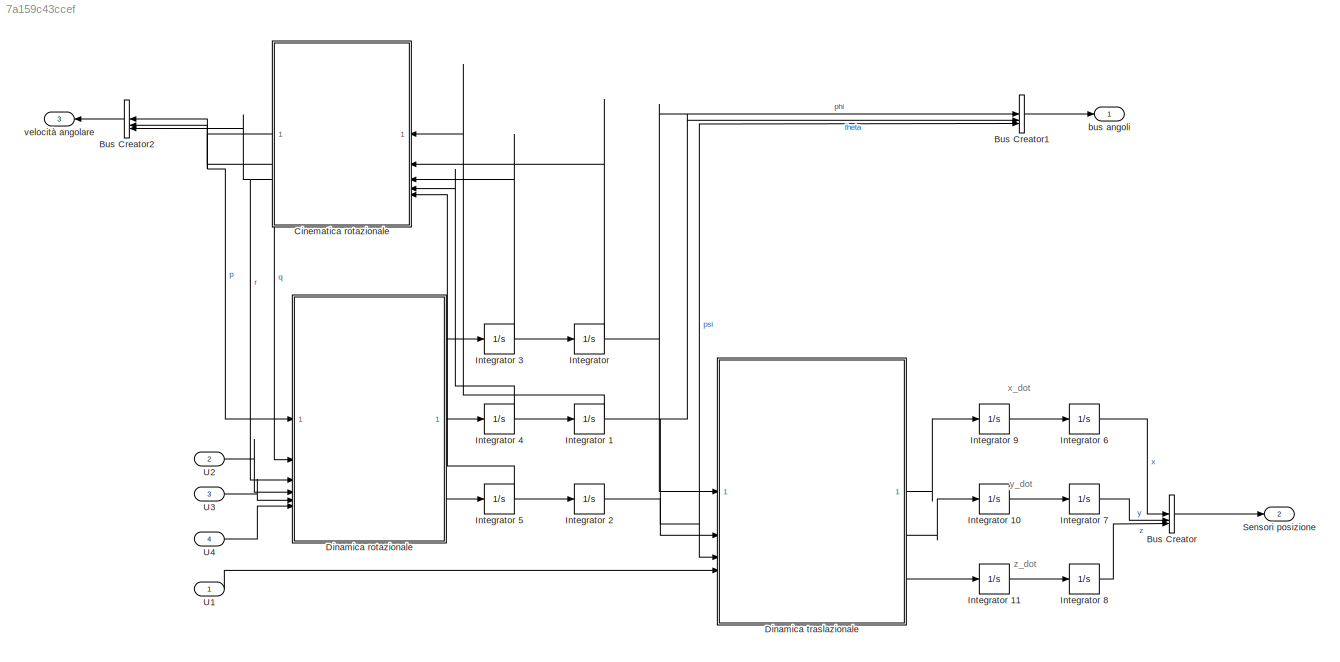
MODEL slx_7a159c43ccef
KIND model
CONFIG AbsTol = auto
CONFIG EnableMultiTasking = off
CONFIG FixedStep = auto
CONFIG MaxStep = auto
CONFIG MinStep = auto
CONFIG RelTol = 1e-3
CONFIG SampleTimeConstraint = Unconstrained
CONFIG SolverName = VariableStepAuto
CONFIG StartTime = 0.0
CONFIG StopTime = 10.0
BLOCK [BusCreator] Bus Creator
  DisplayOption = bar
  InheritFromInputs = on
  Inputs = 3
BLOCK [BusCreator] Bus Creator1
  DisplayOption = bar
  InheritFromInputs = on
  Inputs = 3
BLOCK [BusCreator] Bus Creator2
  DisplayOption = bar
  InheritFromInputs = on
  Inputs = 3
  NameLocation = top
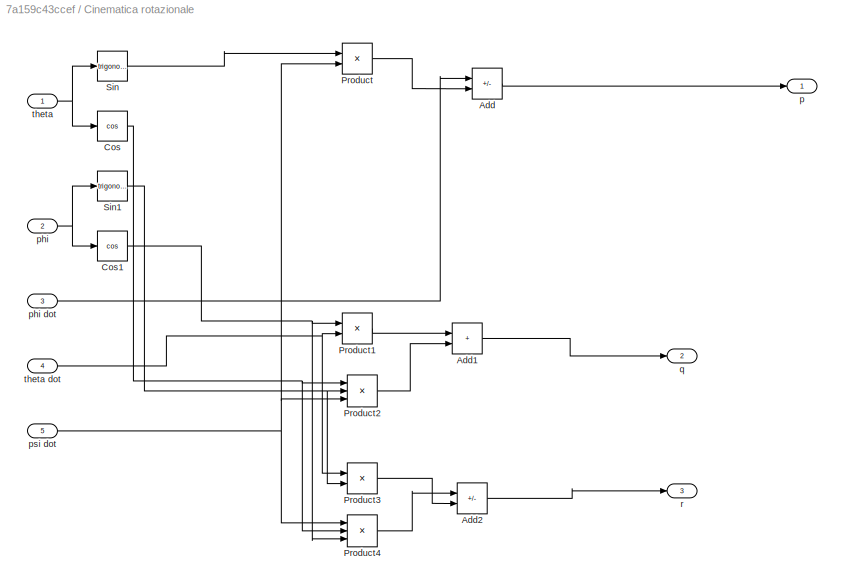
BLOCK [SubSystem] Cinematica rotazionale
  NameLocation = top
BLOCK [Sum] Cinematica rotazionale/Add
  IconShape = rectangular
  Inputs = +-
BLOCK [Sum] Cinematica rotazionale/Add1
  IconShape = rectangular
BLOCK [Sum] Cinematica rotazionale/Add2
  IconShape = rectangular
  Inputs = +-
BLOCK [Trigonometry] Cinematica rotazionale/Cos
  Operator = cos
BLOCK [Trigonometry] Cinematica rotazionale/Cos1
  Operator = cos
BLOCK [Product] Cinematica rotazionale/Product
BLOCK [Product] Cinematica rotazionale/Product1
BLOCK [Product] Cinematica rotazionale/Product2
  Inputs = 3
BLOCK [Product] Cinematica rotazionale/Product3
BLOCK [Product] Cinematica rotazionale/Product4
  Inputs = 3
BLOCK [Trigonometry] Cinematica rotazionale/Sin
BLOCK [Trigonometry] Cinematica rotazionale/Sin1
BLOCK [Outport] Cinematica rotazionale/p
BLOCK [Inport] Cinematica rotazionale/phi
  Port = 2
BLOCK [Inport] Cinematica rotazionale/phi dot
  Port = 3
BLOCK [Inport] Cinematica rotazionale/psi dot
  Port = 5
BLOCK [Outport] Cinematica rotazionale/q
  Port = 2
BLOCK [Outport] Cinematica rotazionale/r
  Port = 3
BLOCK [Inport] Cinematica rotazionale/theta
BLOCK [Inport] Cinematica rotazionale/theta dot
  Port = 4
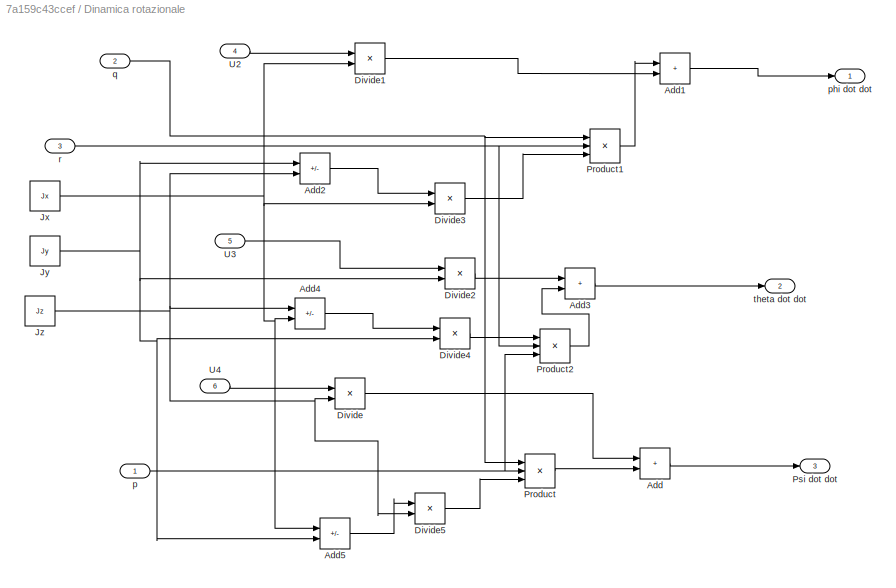
BLOCK [SubSystem] Dinamica rotazionale
BLOCK [Sum] Dinamica rotazionale/Add
  IconShape = rectangular
BLOCK [Sum] Dinamica rotazionale/Add1
  IconShape = rectangular
BLOCK [Sum] Dinamica rotazionale/Add2
  IconShape = rectangular
  Inputs = +-
BLOCK [Sum] Dinamica rotazionale/Add3
  IconShape = rectangular
BLOCK [Sum] Dinamica rotazionale/Add4
  IconShape = rectangular
  Inputs = +-
BLOCK [Sum] Dinamica rotazionale/Add5
  IconShape = rectangular
  Inputs = +-
BLOCK [Product] Dinamica rotazionale/Divide
  Inputs = */
BLOCK [Product] Dinamica rotazionale/Divide1
  Inputs = */
BLOCK [Product] Dinamica rotazionale/Divide2
  Inputs = */
BLOCK [Product] Dinamica rotazionale/Divide3
  Inputs = */
BLOCK [Product] Dinamica rotazionale/Divide4
  Inputs = */
BLOCK [Product] Dinamica rotazionale/Divide5
  Inputs = */
BLOCK [Constant] Dinamica rotazionale/Jx
  Value = Jx
BLOCK [Constant] Dinamica rotazionale/Jy
  Value = Jy
BLOCK [Constant] Dinamica rotazionale/Jz
  Value = Jz
BLOCK [Product] Dinamica rotazionale/Product
  Inputs = 3
BLOCK [Product] Dinamica rotazionale/Product1
  Inputs = 3
BLOCK [Product] Dinamica rotazionale/Product2
  Inputs = 3
BLOCK [Outport] Dinamica rotazionale/Psi dot dot
  Port = 3
BLOCK [Inport] Dinamica rotazionale/U2
  Port = 4
BLOCK [Inport] Dinamica rotazionale/U3
  Port = 5
BLOCK [Inport] Dinamica rotazionale/U4
  Port = 6
BLOCK [Inport] Dinamica rotazionale/p
BLOCK [Outport] Dinamica rotazionale/phi dot dot
BLOCK [Inport] Dinamica rotazionale/q
  Port = 2
BLOCK [Inport] Dinamica rotazionale/r
  Port = 3
BLOCK [Outport] Dinamica rotazionale/theta dot dot
  Port = 2
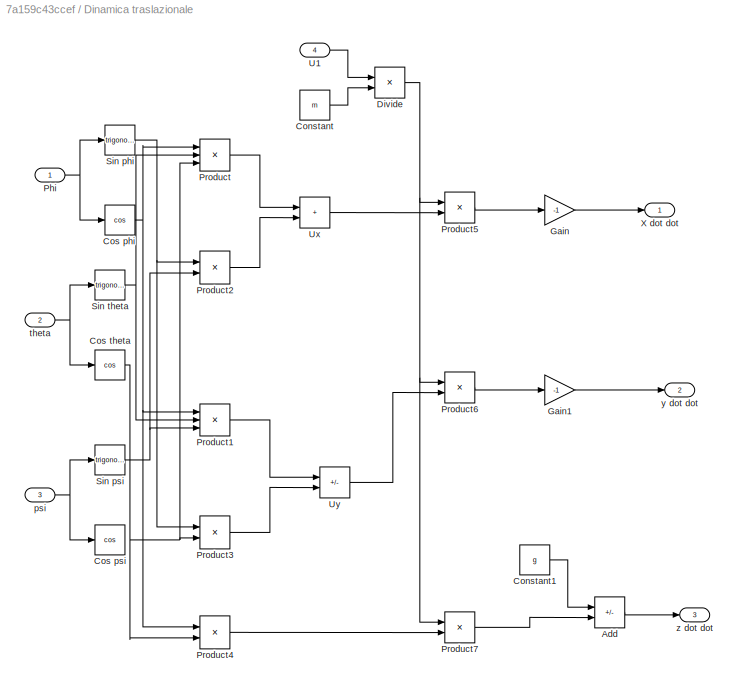
BLOCK [SubSystem] Dinamica traslazionale
BLOCK [Sum] Dinamica traslazionale/Add
  IconShape = rectangular
  Inputs = +-
BLOCK [Constant] Dinamica traslazionale/Constant
  Value = m
BLOCK [Constant] Dinamica traslazionale/Constant1
  Value = g
BLOCK [Trigonometry] Dinamica traslazionale/Cos phi
  Operator = cos
BLOCK [Trigonometry] Dinamica traslazionale/Cos psi
  Operator = cos
BLOCK [Trigonometry] Dinamica traslazionale/Cos theta
  Operator = cos
BLOCK [Product] Dinamica traslazionale/Divide
  Inputs = */
BLOCK [Gain] Dinamica traslazionale/Gain
  Gain = -1
BLOCK [Gain] Dinamica traslazionale/Gain1
  Gain = -1
BLOCK [Inport] Dinamica traslazionale/Phi
BLOCK [Product] Dinamica traslazionale/Product
  Inputs = 3
BLOCK [Product] Dinamica traslazionale/Product1
  Inputs = 3
BLOCK [Product] Dinamica traslazionale/Product2
BLOCK [Product] Dinamica traslazionale/Product3
BLOCK [Product] Dinamica traslazionale/Product4
BLOCK [Product] Dinamica traslazionale/Product5
BLOCK [Product] Dinamica traslazionale/Product6
BLOCK [Product] Dinamica traslazionale/Product7
BLOCK [Trigonometry] Dinamica traslazionale/Sin phi
BLOCK [Trigonometry] Dinamica traslazionale/Sin psi
BLOCK [Trigonometry] Dinamica traslazionale/Sin theta
BLOCK [Inport] Dinamica traslazionale/U1
  Port = 4
BLOCK [Sum] Dinamica traslazionale/Ux
  IconShape = rectangular
BLOCK [Sum] Dinamica traslazionale/Uy
  IconShape = rectangular
  Inputs = +-
BLOCK [Outport] Dinamica traslazionale/X dot dot
BLOCK [Inport] Dinamica traslazionale/psi
  Port = 3
BLOCK [Inport] Dinamica traslazionale/theta
  Port = 2
BLOCK [Outport] Dinamica traslazionale/y dot dot
  Port = 2
BLOCK [Outport] Dinamica traslazionale/z dot dot
  Port = 3
BLOCK [Integrator] Integrator 
BLOCK [Integrator] Integrator 1
BLOCK [Integrator] Integrator 10
BLOCK [Integrator] Integrator 11
BLOCK [Integrator] Integrator 2
BLOCK [Integrator] Integrator 3
BLOCK [Integrator] Integrator 4
BLOCK [Integrator] Integrator 5
BLOCK [Integrator] Integrator 6
  ContinuousStateAttributes = X_out
BLOCK [Integrator] Integrator 7
  ContinuousStateAttributes = Y_out
BLOCK [Integrator] Integrator 8
  ContinuousStateAttributes = Z_out
BLOCK [Integrator] Integrator 9
BLOCK [Outport] Sensori posizione
  Port = 2
BLOCK [Inport] U1
BLOCK [Inport] U2
  Port = 2
BLOCK [Inport] U3
  Port = 3
BLOCK [Inport] U4
  Port = 4
BLOCK [Outport] bus angoli
BLOCK [Outport] velocità angolare
  NameLocation = top
  Port = 3
ANNOTATION (root): x_dot
ANNOTATION (root): y_dot
ANNOTATION (root): z_dot
LINE Bus Creator1:1 -> bus angoli:1
LINE Bus Creator2:1 -> velocità angolare:1
LINE Bus Creator:1 -> Sensori posizione:1
LINE Cinematica rotazionale/Add1:1 -> Cinematica rotazionale/q:1
LINE Cinematica rotazionale/Add2:1 -> Cinematica rotazionale/r:1
LINE Cinematica rotazionale/Add:1 -> Cinematica rotazionale/p:1
NET Cinematica rotazionale/Cos1:1 -> Cinematica rotazionale/Product1:1, Cinematica rotazionale/Product4:3
NET Cinematica rotazionale/Cos:1 -> Cinematica rotazionale/Product2:1, Cinematica rotazionale/Product4:2
LINE Cinematica rotazionale/Product1:1 -> Cinematica rotazionale/Add1:1
LINE Cinematica rotazionale/Product2:1 -> Cinematica rotazionale/Add1:2
LINE Cinematica rotazionale/Product3:1 -> Cinematica rotazionale/Add2:2
LINE Cinematica rotazionale/Product4:1 -> Cinematica rotazionale/Add2:1
LINE Cinematica rotazionale/Product:1 -> Cinematica rotazionale/Add:2
NET Cinematica rotazionale/Sin1:1 -> Cinematica rotazionale/Product2:2, Cinematica rotazionale/Product3:2
LINE Cinematica rotazionale/Sin:1 -> Cinematica rotazionale/Product:1
LINE Cinematica rotazionale/phi dot:1 -> Cinematica rotazionale/Add:1
NET Cinematica rotazionale/phi:1 -> Cinematica rotazionale/Cos1:1, Cinematica rotazionale/Sin1:1
NET Cinematica rotazionale/psi dot:1 -> Cinematica rotazionale/Product2:3, Cinematica rotazionale/Product4:1, Cinematica rotazionale/Product:2
NET Cinematica rotazionale/theta dot:1 -> Cinematica rotazionale/Product1:2, Cinematica rotazionale/Product3:1
NET Cinematica rotazionale/theta:1 -> Cinematica rotazionale/Cos:1, Cinematica rotazionale/Sin:1
NET Cinematica rotazionale:1 -> Bus Creator2:1, Dinamica rotazionale:1
NET Cinematica rotazionale:2 -> Bus Creator2:2, Dinamica rotazionale:2
NET Cinematica rotazionale:3 -> Bus Creator2:3, Dinamica rotazionale:3
LINE Dinamica rotazionale/Add1:1 -> Dinamica rotazionale/phi dot dot:1
LINE Dinamica rotazionale/Add2:1 -> Dinamica rotazionale/Divide3:1
LINE Dinamica rotazionale/Add3:1 -> Dinamica rotazionale/theta dot dot:1
LINE Dinamica rotazionale/Add4:1 -> Dinamica rotazionale/Divide4:1
LINE Dinamica rotazionale/Add5:1 -> Dinamica rotazionale/Divide5:1
LINE Dinamica rotazionale/Add:1 -> Dinamica rotazionale/Psi dot dot:1
LINE Dinamica rotazionale/Divide1:1 -> Dinamica rotazionale/Add1:2
LINE Dinamica rotazionale/Divide2:1 -> Dinamica rotazionale/Add3:1
LINE Dinamica rotazionale/Divide3:1 -> Dinamica rotazionale/Product1:3
LINE Dinamica rotazionale/Divide4:1 -> Dinamica rotazionale/Product2:1
LINE Dinamica rotazionale/Divide5:1 -> Dinamica rotazionale/Product:3
LINE Dinamica rotazionale/Divide:1 -> Dinamica rotazionale/Add:1
NET Dinamica rotazionale/Jx:1 -> Dinamica rotazionale/Add4:2, Dinamica rotazionale/Add5:1, Dinamica rotazionale/Divide1:2, Dinamica rotazionale/Divide3:2
NET Dinamica rotazionale/Jy:1 -> Dinamica rotazionale/Add2:1, Dinamica rotazionale/Add5:2, Dinamica rotazionale/Divide2:2, Dinamica rotazionale/Divide4:2
NET Dinamica rotazionale/Jz:1 -> Dinamica rotazionale/Add2:2, Dinamica rotazionale/Add4:1, Dinamica rotazionale/Divide5:2, Dinamica rotazionale/Divide:2
LINE Dinamica rotazionale/Product1:1 -> Dinamica rotazionale/Add1:1
LINE Dinamica rotazionale/Product2:1 -> Dinamica rotazionale/Add3:2
LINE Dinamica rotazionale/Product:1 -> Dinamica rotazionale/Add:2
LINE Dinamica rotazionale/U2:1 -> Dinamica rotazionale/Divide1:1
LINE Dinamica rotazionale/U3:1 -> Dinamica rotazionale/Divide2:1
LINE Dinamica rotazionale/U4:1 -> Dinamica rotazionale/Divide:1
NET Dinamica rotazionale/p:1 -> Dinamica rotazionale/Product2:3, Dinamica rotazionale/Product:2
NET Dinamica rotazionale/q:1 -> Dinamica rotazionale/Product1:1, Dinamica rotazionale/Product:1
NET Dinamica rotazionale/r:1 -> Dinamica rotazionale/Product1:2, Dinamica rotazionale/Product2:2
LINE Dinamica rotazionale:1 -> Integrator 3:1
LINE Dinamica rotazionale:2 -> Integrator 4:1
LINE Dinamica rotazionale:3 -> Integrator 5:1
LINE Dinamica traslazionale/Add:1 -> Dinamica traslazionale/z dot dot:1
LINE Dinamica traslazionale/Constant1:1 -> Dinamica traslazionale/Add:1
LINE Dinamica traslazionale/Constant:1 -> Dinamica traslazionale/Divide:2
NET Dinamica traslazionale/Cos phi:1 -> Dinamica traslazionale/Product1:1, Dinamica traslazionale/Product4:1, Dinamica traslazionale/Product:1
NET Dinamica traslazionale/Cos theta:1 -> Dinamica traslazionale/Product3:2, Dinamica traslazionale/Product4:2, Dinamica traslazionale/Product:3
NET Dinamica traslazionale/Divide:1 -> Dinamica traslazionale/Product5:1, Dinamica traslazionale/Product6:1, Dinamica traslazionale/Product7:1
LINE Dinamica traslazionale/Gain1:1 -> Dinamica traslazionale/y dot dot:1
LINE Dinamica traslazionale/Gain:1 -> Dinamica traslazionale/X dot dot:1
NET Dinamica traslazionale/Phi:1 -> Dinamica traslazionale/Cos phi:1, Dinamica traslazionale/Sin phi:1
LINE Dinamica traslazionale/Product1:1 -> Dinamica traslazionale/Uy:1
LINE Dinamica traslazionale/Product2:1 -> Dinamica traslazionale/Ux:2
LINE Dinamica traslazionale/Product3:1 -> Dinamica traslazionale/Uy:2
LINE Dinamica traslazionale/Product4:1 -> Dinamica traslazionale/Product7:2
LINE Dinamica traslazionale/Product5:1 -> Dinamica traslazionale/Gain:1
LINE Dinamica traslazionale/Product6:1 -> Dinamica traslazionale/Gain1:1
LINE Dinamica traslazionale/Product7:1 -> Dinamica traslazionale/Add:2
LINE Dinamica traslazionale/Product:1 -> Dinamica traslazionale/Ux:1
NET Dinamica traslazionale/Sin phi:1 -> Dinamica traslazionale/Product2:1, Dinamica traslazionale/Product3:1
NET Dinamica traslazionale/Sin psi:1 -> Dinamica traslazionale/Product1:3, Dinamica traslazionale/Product2:2
NET Dinamica traslazionale/Sin theta:1 -> Dinamica traslazionale/Product1:2, Dinamica traslazionale/Product:2
LINE Dinamica traslazionale/U1:1 -> Dinamica traslazionale/Divide:1
LINE Dinamica traslazionale/Ux:1 -> Dinamica traslazionale/Product5:2
LINE Dinamica traslazionale/Uy:1 -> Dinamica traslazionale/Product6:2
NET Dinamica traslazionale/psi:1 -> Dinamica traslazionale/Cos psi:1, Dinamica traslazionale/Sin psi:1
NET Dinamica traslazionale/theta:1 -> Dinamica traslazionale/Cos theta:1, Dinamica traslazionale/Sin theta:1
LINE Dinamica traslazionale:1 -> Integrator 9:1
LINE Dinamica traslazionale:2 -> Integrator 10:1
LINE Dinamica traslazionale:3 -> Integrator 11:1
LINE Integrator 10:1 -> Integrator 7:1
LINE Integrator 11:1 -> Integrator 8:1
NET Integrator 1:1 -> Bus Creator1:2, Cinematica rotazionale:1, Dinamica traslazionale:2
NET Integrator 2:1 -> Bus Creator1:3, Dinamica traslazionale:3
NET Integrator 3:1 -> Cinematica rotazionale:3, Integrator :1
NET Integrator 4:1 -> Cinematica rotazionale:4, Integrator 1:1
NET Integrator 5:1 -> Cinematica rotazionale:5, Integrator 2:1
LINE Integrator 6:1 -> Bus Creator:1
LINE Integrator 7:1 -> Bus Creator:2
LINE Integrator 8:1 -> Bus Creator:3
LINE Integrator 9:1 -> Integrator 6:1
NET Integrator :1 -> Bus Creator1:1, Cinematica rotazionale:2, Dinamica traslazionale:1
LINE U1:1 -> Dinamica traslazionale:4
LINE U2:1 -> Dinamica rotazionale:4
LINE U3:1 -> Dinamica rotazionale:5
LINE U4:1 -> Dinamica rotazionale:6
note: NET lines group one-source signal fan-out (src -> all destinations, sorted); 1:1 wires keep LINE
